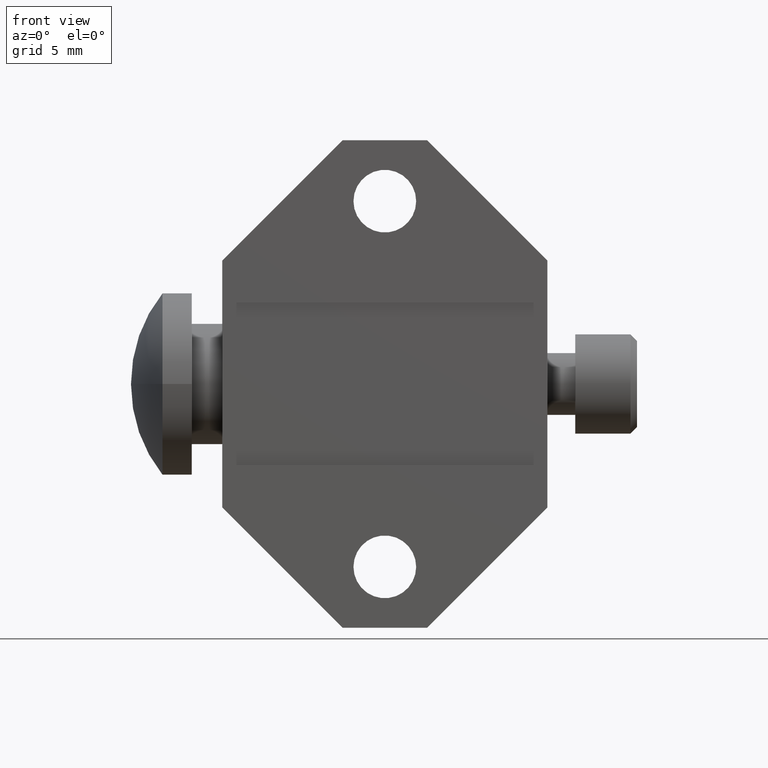
[diagram: clean part render]
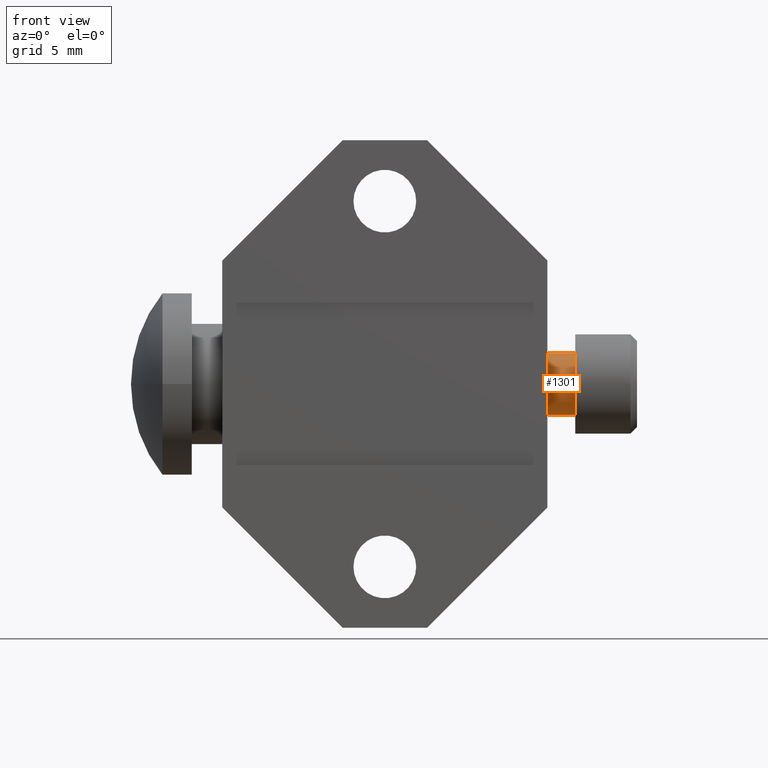
[diagram: same view with one face highlighted and labeled with its STEP entity id]
A machine part, front view. The second image highlights one B-rep face of the part: STEP entity #1301.
In plain terms, the highlighted cylindrical surface (edge-blend (fillet) strip) has radius 2.413 mm, axis along (1, 0, 0).
Its self-contained STEP definition (entity closure, byte-faithful):
#138=CARTESIAN_POINT('',(5.86E-1,3.12E-1,0.E0));
#139=DIRECTION('',(1.E0,0.E0,0.E0));
#140=DIRECTION('',(0.E0,0.E0,1.E0));
#141=AXIS2_PLACEMENT_3D('',#138,#139,#140);
#332=DIRECTION('',(1.E0,0.E0,0.E0));
#333=VECTOR('',#332,8.6E-2);
#334=CARTESIAN_POINT('',(5.E-1,3.12E-1,-9.5E-2));
#335=LINE('',#334,#333);
#347=CARTESIAN_POINT('',(5.E-1,3.12E-1,0.E0));
#348=DIRECTION('',(1.E0,0.E0,0.E0));
#349=DIRECTION('',(0.E0,0.E0,1.E0));
#350=AXIS2_PLACEMENT_3D('',#347,#348,#349);
#398=DIRECTION('',(1.E0,0.E0,0.E0));
#399=VECTOR('',#398,8.6E-2);
#400=CARTESIAN_POINT('',(5.E-1,3.12E-1,9.5E-2));
#401=LINE('',#400,#399);
#1034=CARTESIAN_POINT('',(5.E-1,3.12E-1,-9.5E-2));
#1035=CARTESIAN_POINT('',(5.E-1,3.12E-1,9.5E-2));
#1036=VERTEX_POINT('',#1034);
#1037=VERTEX_POINT('',#1035);
#1038=CARTESIAN_POINT('',(5.86E-1,3.12E-1,-9.5E-2));
#1039=VERTEX_POINT('',#1038);
#1040=CARTESIAN_POINT('',(5.86E-1,3.12E-1,9.5E-2));
#1041=VERTEX_POINT('',#1040);
#1290=CARTESIAN_POINT('',(0.E0,3.12E-1,0.E0));
#1291=DIRECTION('',(1.E0,0.E0,0.E0));
#1292=DIRECTION('',(0.E0,0.E0,-1.E0));
#1293=AXIS2_PLACEMENT_3D('',#1290,#1291,#1292);
#1294=CYLINDRICAL_SURFACE('',#1293,9.5E-2);
#1295=ORIENTED_EDGE('',*,*,#1285,.F.);
#1296=ORIENTED_EDGE('',*,*,#1248,.T.);
#1297=ORIENTED_EDGE('',*,*,#1055,.T.);
#1298=ORIENTED_EDGE('',*,*,#1245,.F.);
#1299=EDGE_LOOP('',(#1295,#1296,#1297,#1298));
#1300=FACE_OUTER_BOUND('',#1299,.F.);
#1301=ADVANCED_FACE('',(#1300),#1294,.T.);
#142=CIRCLE('',#141,9.5E-2);
#351=CIRCLE('',#350,9.5E-2);
#1055=EDGE_CURVE('',#1041,#1039,#142,.T.);
#1245=EDGE_CURVE('',#1036,#1039,#335,.T.);
#1248=EDGE_CURVE('',#1037,#1041,#401,.T.);
#1285=EDGE_CURVE('',#1037,#1036,#351,.T.);